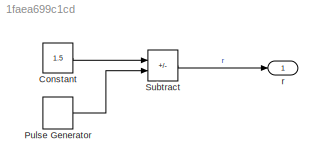
MODEL slx_1faea699c1cd
KIND model
CONFIG AbsTol = auto
CONFIG EnableMultiTasking = off
CONFIG FixedStep = 0.05
CONFIG InitFcn = clear,\nSampleTime,\nSystemParameters
CONFIG MaxStep = auto
CONFIG MinStep = auto
CONFIG RelTol = 1e-3
CONFIG SampleTimeConstraint = Unconstrained
CONFIG SolverName = FixedStepAuto
CONFIG StartTime = 0.0
CONFIG StopTime = 20.0
BLOCK [Constant] Constant
  Value = 1.5
BLOCK [DiscretePulseGenerator] Pulse Generator
  Amplitude = 0.5
  Period = 160
  Ports = [0, 1]
  PulseWidth = 80
  SampleTime = sample_time
BLOCK [Sum] Subtract
  IconShape = rectangular
  Inputs = +-
  Ports = [2, 1]
BLOCK [Outport] r
  OutDataTypeStr = double
  PortDimensions = 1
  SampleTime = [0.050000000000000003,0]
  SamplingMode = Sample based
  SignalType = real
LINE Constant:1 -> Subtract:1
LINE Pulse Generator:1 -> Subtract:2
LINE Subtract:1 -> r:1
